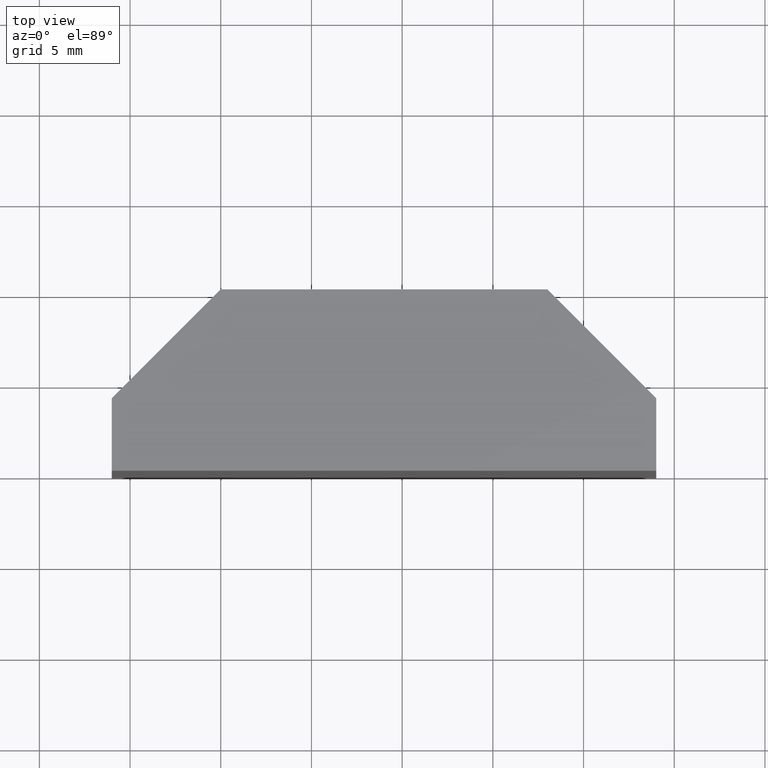
[diagram: clean part render]
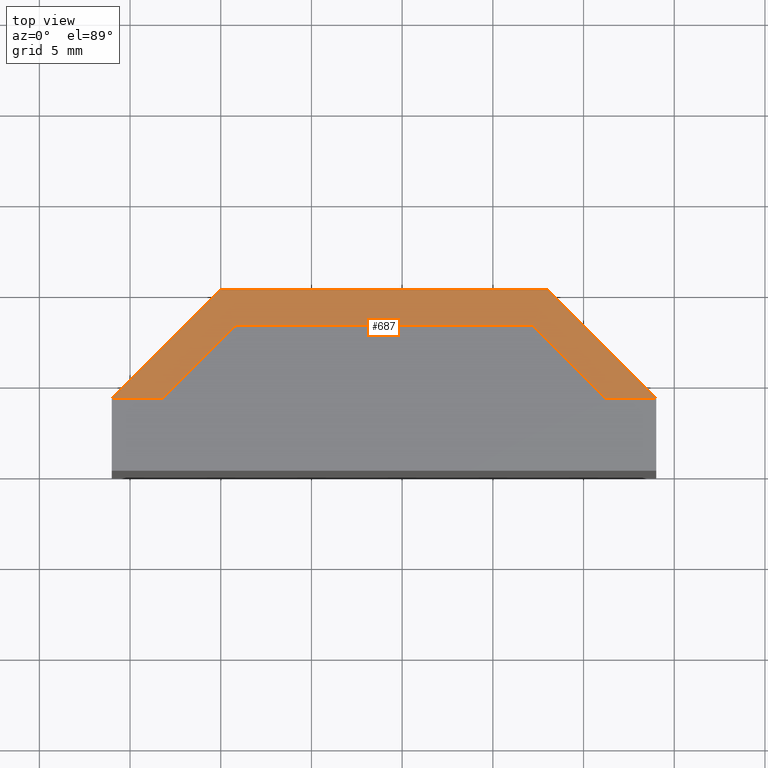
[diagram: same view with one face highlighted and labeled with its STEP entity id]
A machine part, top view. The second image highlights one B-rep face of the part: STEP entity #687.
In plain terms, the highlighted planar face has unit normal (0, 0, 1).
Its self-contained STEP definition (entity closure, byte-faithful):
#76=FACE_OUTER_BOUND('',#117,.T.);
#117=EDGE_LOOP('',(#613,#614,#615,#616,#617,#618,#619,#620));
#176=LINE('',#1112,#261);
#179=LINE('',#1117,#264);
#183=LINE('',#1127,#268);
#187=LINE('',#1135,#272);
#191=LINE('',#1142,#276);
#196=LINE('',#1153,#281);
#200=LINE('',#1158,#285);
#201=LINE('',#1160,#286);
#261=VECTOR('',#922,10.);
#264=VECTOR('',#927,10.);
#268=VECTOR('',#935,10.);
#272=VECTOR('',#941,10.);
#276=VECTOR('',#947,10.);
#281=VECTOR('',#958,10.);
#285=VECTOR('',#962,10.);
#286=VECTOR('',#965,10.);
#332=VERTEX_POINT('',#1109);
#333=VERTEX_POINT('',#1111);
#334=VERTEX_POINT('',#1115);
#337=VERTEX_POINT('',#1125);
#338=VERTEX_POINT('',#1126);
#341=VERTEX_POINT('',#1134);
#343=VERTEX_POINT('',#1140);
#346=VERTEX_POINT('',#1152);
#412=EDGE_CURVE('',#332,#333,#176,.T.);
#415=EDGE_CURVE('',#334,#332,#179,.T.);
#419=EDGE_CURVE('',#337,#338,#183,.T.);
#423=EDGE_CURVE('',#338,#341,#187,.T.);
#427=EDGE_CURVE('',#343,#334,#191,.T.);
#432=EDGE_CURVE('',#333,#346,#196,.T.);
#436=EDGE_CURVE('',#341,#343,#200,.T.);
#437=EDGE_CURVE('',#346,#337,#201,.T.);
#613=ORIENTED_EDGE('',*,*,#419,.F.);
#614=ORIENTED_EDGE('',*,*,#437,.F.);
#615=ORIENTED_EDGE('',*,*,#432,.F.);
#616=ORIENTED_EDGE('',*,*,#412,.F.);
#617=ORIENTED_EDGE('',*,*,#415,.F.);
#618=ORIENTED_EDGE('',*,*,#427,.F.);
#619=ORIENTED_EDGE('',*,*,#436,.F.);
#620=ORIENTED_EDGE('',*,*,#423,.F.);
#652=PLANE('',#795);
#687=ADVANCED_FACE('',(#76),#652,.T.);
#795=AXIS2_PLACEMENT_3D('',#1163,#969,#970);
#922=DIRECTION('',(-0.707499563151495,-0.706713780918728,0.));
#927=DIRECTION('',(-1.,-1.35853233676014E-16,0.));
#935=DIRECTION('',(1.,0.,0.));
#941=DIRECTION('',(0.707499563151495,-0.706713780918728,0.));
#947=DIRECTION('',(-0.707499563151494,0.706713780918729,0.));
#958=DIRECTION('',(-1.,0.,0.));
#962=DIRECTION('',(-1.,6.27687929116689E-15,0.));
#965=DIRECTION('',(0.707499563151495,0.706713780918728,0.));
#969=DIRECTION('center_axis',(0.,0.,1.));
#970=DIRECTION('ref_axis',(1.,0.,0.));
#1109=CARTESIAN_POINT('',(-8.17222376371874,-2.,24.));
#1111=CARTESIAN_POINT('',(-12.1766712911562,-6.,24.));
#1112=CARTESIAN_POINT('',(-12.1766712911562,-6.,24.));
#1115=CARTESIAN_POINT('',(8.17222376371873,-2.,24.));
#1117=CARTESIAN_POINT('',(-8.17222376371873,-2.,24.));
#1125=CARTESIAN_POINT('',(-9.,0.,24.));
#1126=CARTESIAN_POINT('',(9.,0.,24.));
#1127=CARTESIAN_POINT('',(9.,0.,24.));
#1134=CARTESIAN_POINT('',(15.0066712911562,-6.,24.));
#1135=CARTESIAN_POINT('',(15.0066712911562,-6.,24.));
#1140=CARTESIAN_POINT('',(12.1766712911562,-5.99999999999998,24.));
#1142=CARTESIAN_POINT('',(8.17222376371873,-2.,24.));
#1152=CARTESIAN_POINT('',(-15.0066712911562,-6.,24.));
#1153=CARTESIAN_POINT('',(-15.0066712911562,-6.,24.));
#1158=CARTESIAN_POINT('',(12.1766712911562,-5.99999999999998,24.));
#1160=CARTESIAN_POINT('',(-9.,0.,24.));
#1163=CARTESIAN_POINT('Origin',(-1.17961196366423E-15,-2.38445519948685,
24.));